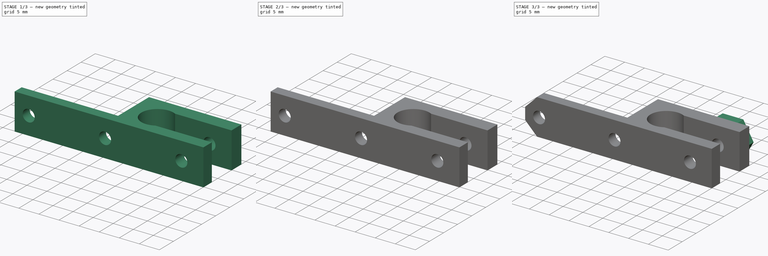
[diagram: build sequence overview — one tinted view per stage of 3, left to right]
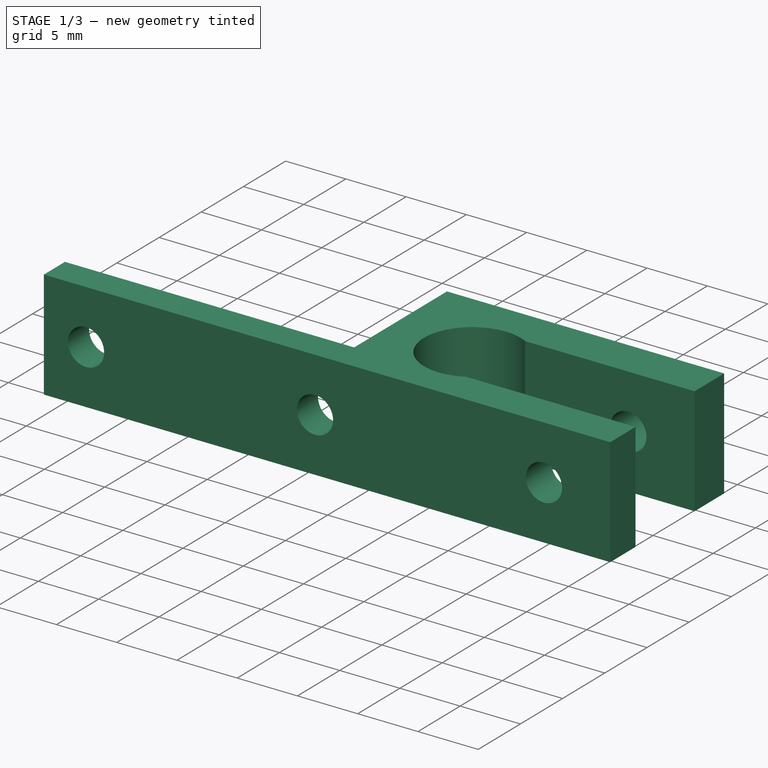
[diagram: stage 1 of 3 — iso view after this stage's code; geometry added in this stage tinted green]
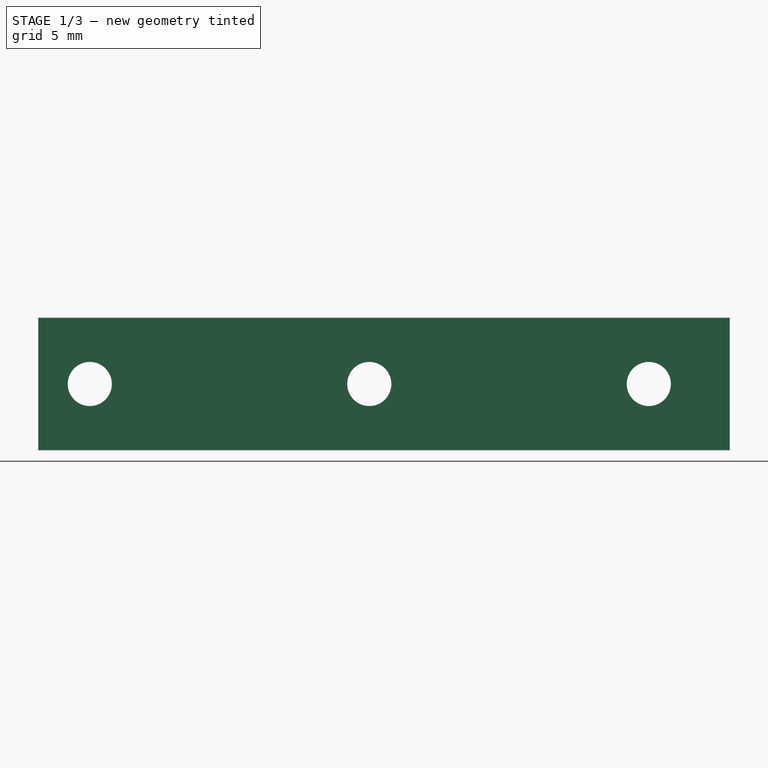
[diagram: stage 1 of 3 — front view after this stage's code; geometry added in this stage tinted green]
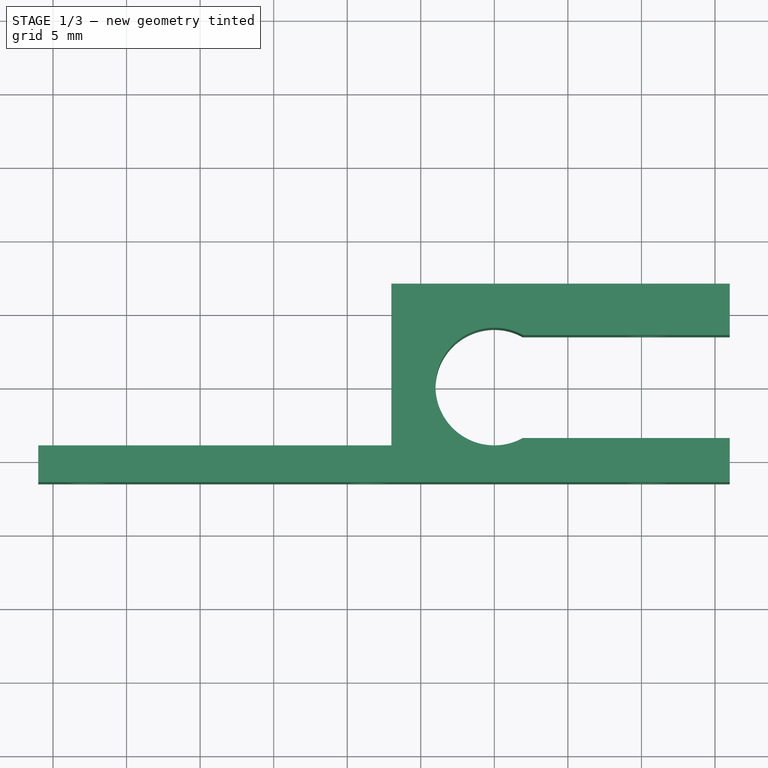
[diagram: stage 1 of 3 — top view after this stage's code; geometry added in this stage tinted green]
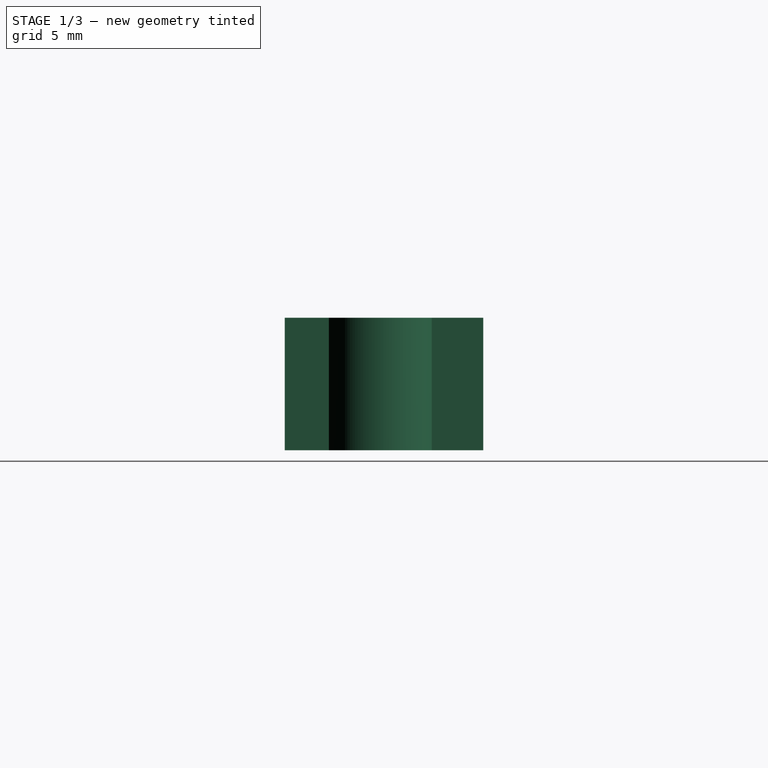
[diagram: stage 1 of 3 — right view after this stage's code; geometry added in this stage tinted green]
FCSTD DOCUMENT  (FreeCAD 0.19R17798 (Git))
Label: endstop_holder
License: All rights reserved
LicenseURL: http://en.wikipedia.org/wiki/All_rights_reserved
objects: Sketcher::SketchObject×5, PartDesign::Pocket×3, PartDesign::Pad×2
note: 15 computed .brp shape members not serialized (recipe doc carries the construction recipe); baked Part::Feature solids carry a one-line shape summary decoded from their .brp

FEATURE [Sketcher::SketchObject] Sketch  label="holderSketch"
  MapMode = 5
  sketch-geometry (21):
    g0: Circle [constr] CenterX=0 CenterY=0 CenterZ=0 NormalX=0 NormalY=0 NormalZ=1 AngleXU=0 Radius=4
    g1: LineSegment [constr] StartX=0 StartY=0 StartZ=0 EndX=0 EndY=-4 EndZ=0
    g2: LineSegment [constr] StartX=0 StartY=0 StartZ=0 EndX=0 EndY=4 EndZ=0
    g3: GeomPoint [constr] X=1.93649 Y=3.5 Z=0
    g4: GeomPoint [constr] X=1.93649 Y=-3.5 Z=0
    g5: LineSegment [constr] StartX=0 StartY=4 StartZ=0 EndX=0 EndY=7 EndZ=0
    g6: LineSegment [constr] StartX=0 StartY=-4 StartZ=0 EndX=0 EndY=-6.5 EndZ=0
    g7: LineSegment [constr] StartX=0 StartY=0 StartZ=0 EndX=-7 EndY=0 EndZ=0
    g8: LineSegment [constr] StartX=-7 StartY=0 StartZ=0 EndX=-31 EndY=0 EndZ=0
    g9: GeomPoint [constr] X=-7 Y=-4 Z=0
    g10: LineSegment StartX=-7 StartY=-4 StartZ=0 EndX=-31 EndY=-4 EndZ=0
    g11: LineSegment StartX=-31 StartY=-4 StartZ=0 EndX=-31 EndY=-6.5 EndZ=0
    g12: LineSegment StartX=-31 StartY=-6.5 StartZ=0 EndX=16 EndY=-6.5 EndZ=0
    g13: LineSegment StartX=16 StartY=-6.5 StartZ=0 EndX=16 EndY=-3.5 EndZ=0
    g14: LineSegment StartX=16 StartY=-3.5 StartZ=0 EndX=1.93649 EndY=-3.5 EndZ=0
    g15: ArcOfCircle CenterX=0 CenterY=0 CenterZ=0 NormalX=0 NormalY=0 NormalZ=1 AngleXU=0 Radius=4 StartAngle=1.06544 EndAngle=5.21775
    g16: LineSegment StartX=1.93649 StartY=3.5 StartZ=0 EndX=16 EndY=3.5 EndZ=0
    g17: LineSegment StartX=0 StartY=7 StartZ=0 EndX=16 EndY=7 EndZ=0
    g18: LineSegment StartX=16 StartY=7 StartZ=0 EndX=16 EndY=3.5 EndZ=0
    g19: LineSegment StartX=-7 StartY=-4 StartZ=0 EndX=-7 EndY=7 EndZ=0
    g20: LineSegment StartX=-7 StartY=7 StartZ=0 EndX=0 EndY=7 EndZ=0
  constraints (56):
    c: Coincident(g0,g-1)
    c: Radius(g0) = 4
    c: Vertical(g1)
    c: Vertical(g2)
    c: Coincident(g2,g-1)
    c: Coincident(g1,g-1)
    c: DistanceY(g2,g2) = 4
    c: Equal(g2,g1)
    c: PointOnObject(g3,g0)
    c: PointOnObject(g4,g0)
    c: DistanceY(g1,g4) = 0.5
    c: DistanceY(g3,g2) = 0.5
    c: Vertical(g5)
    c: Vertical(g6)
    c: Coincident(g6,g1)
    c: Coincident(g5,g2)
    c: DistanceY(g5,g5) = 3
    c: DistanceY(g6,g6) = 2.5
    c: Horizontal(g7)
    c: Coincident(g7,g-1)
    c: DistanceX(g7,g7) = 7
    c: Horizontal(g8)
    c: Coincident(g8,g7)
    c: DistanceX(g8,g8) = 24
    c: DistanceY(g1,g9) = 0
    c: Coincident(g10,g9)
    c: Horizontal(g10)
    c: DistanceX(g8,g10) = 0
    c: Coincident(g10,g11)
    c: Vertical(g11)
    c: Coincident(g11,g12)
    c: Horizontal(g12)
    c: DistanceX(g12,g12) = 47
    c: DistanceY(g6,g12) = 0
    c: Coincident(g12,g13)
    c: Vertical(g13)
    c: Coincident(g13,g14)
    c: Coincident(g14,g4)
    c: Horizontal(g14)
    c: Coincident(g15,g-1)
    c: Coincident(g15,g4)
    c: Coincident(g15,g3)
    c: Coincident(g16,g3)
    c: Horizontal(g16)
    c: DistanceX(g13,g16) = 0
    c: Coincident(g5,g17)
    c: Horizontal(g17)
    c: Coincident(g17,g18)
    c: Coincident(g18,g16)
    c: Vertical(g18)
    c: DistanceX(g7,g9) = 0
    c: Coincident(g19,g9)
    c: Vertical(g19)
    c: DistanceY(g19,g5) = 0
    c: Coincident(g20,g19)
    c: Coincident(g20,g5)
FEATURE [PartDesign::Pad] Pad  label="holderPad"
  Length = 9
  Length2 = 100
  Profile = -> Sketch
  Type = 0
FEATURE [Sketcher::SketchObject] Sketch001  label="holesSketch"
  MapMode = 5
  Placement = pos=(0,-6.5,0) rot=(1,0,0;1.5708rad)
  Support = -> [Pad]
  sketch-geometry (6):
    g0: GeomPoint [constr] X=10.5 Y=4.5 Z=0
    g1: GeomPoint [constr] X=-27.5 Y=4.5 Z=0
    g2: GeomPoint [constr] X=-8.5 Y=4.5 Z=0
    g3: Circle CenterX=-27.5 CenterY=4.5 CenterZ=0 NormalX=0 NormalY=0 NormalZ=1 AngleXU=0 Radius=1.5
    g4: Circle CenterX=-8.5 CenterY=4.5 CenterZ=0 NormalX=0 NormalY=0 NormalZ=1 AngleXU=0 Radius=1.5
    g5: Circle CenterX=10.5 CenterY=4.5 CenterZ=0 NormalX=0 NormalY=0 NormalZ=1 AngleXU=0 Radius=1.5
  constraints (12):
    c: DistanceY(g-1,g0) = 4.5
    c: DistanceX(g-1,g0) = 10.5
    c: DistanceY(g-1,g1) = 4.5
    c: DistanceX(g1,g-1) = 27.5
    c: DistanceY(g-1,g2) = 4.5
    c: DistanceX(g1,g2) = 19
    c: Equal(g5,g4)
    c: Equal(g4,g3)
    c: Coincident(g1,g3)
    c: Coincident(g2,g4)
    c: Coincident(g0,g5)
    c: Radius(g3) = 1.5
FEATURE [PartDesign::Pocket] Pocket  label="holesPocket"
  Length = 5
  Length2 = 100
  Profile = -> Sketch001
  Type = 1
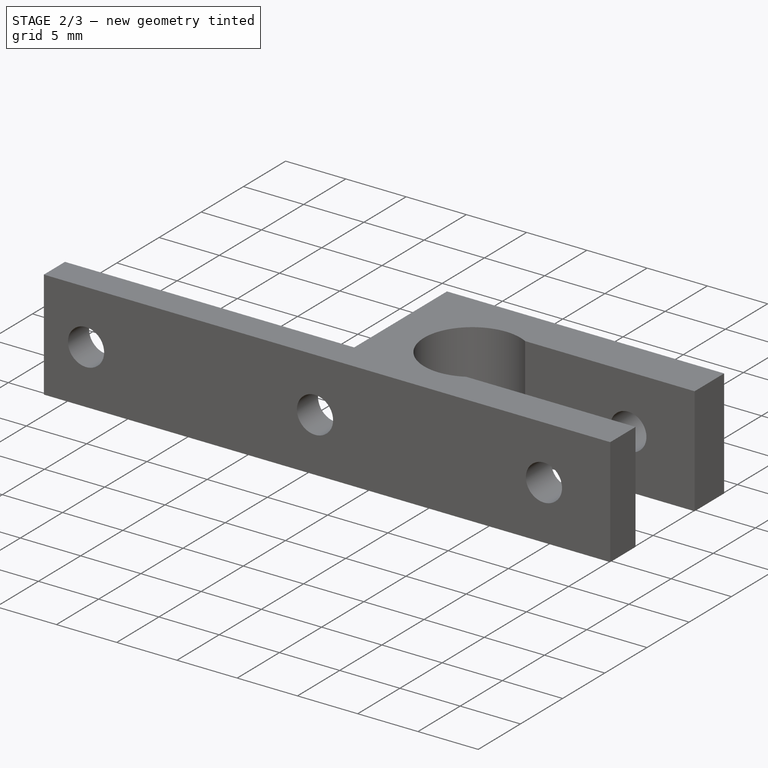
[diagram: stage 2 of 3 — iso view after this stage's code; geometry added in this stage tinted green]
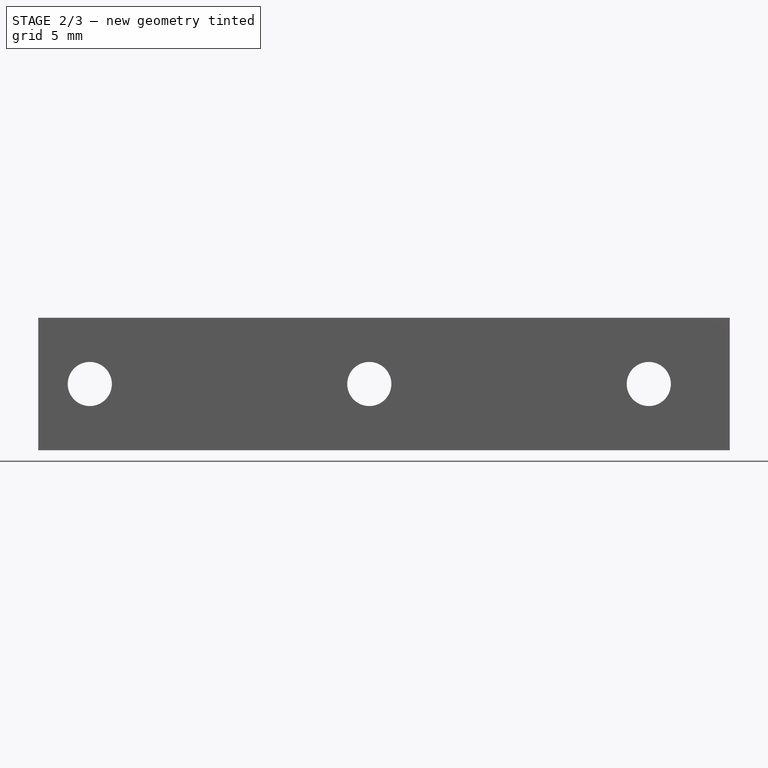
[diagram: stage 2 of 3 — front view after this stage's code; geometry added in this stage tinted green]
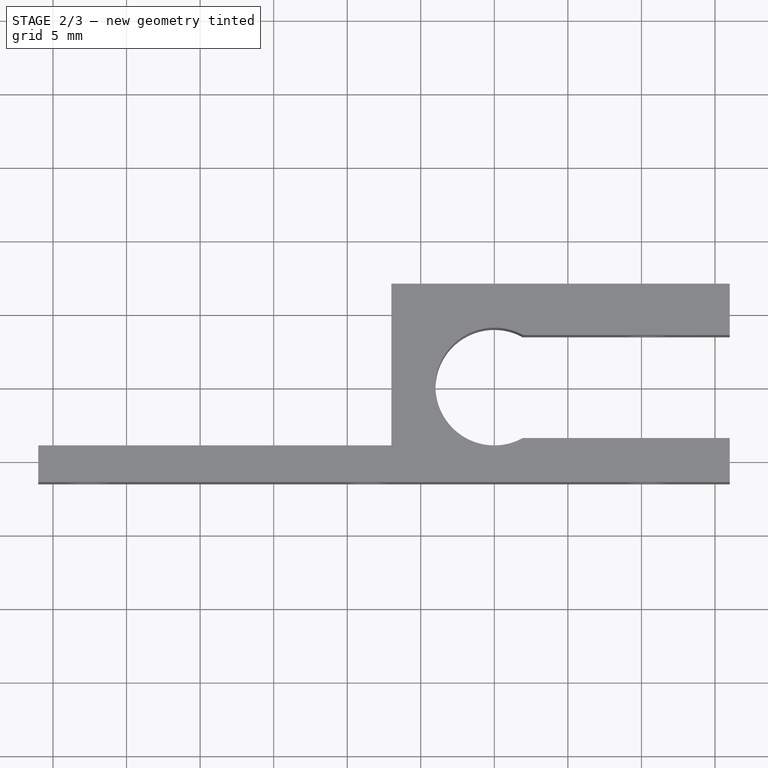
[diagram: stage 2 of 3 — top view after this stage's code; geometry added in this stage tinted green]
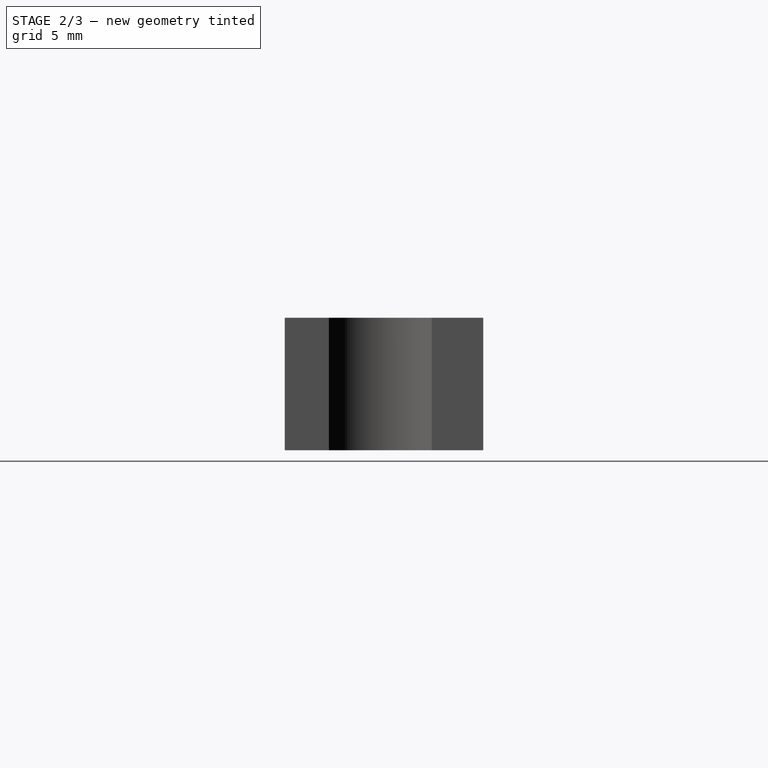
[diagram: stage 2 of 3 — right view after this stage's code; geometry added in this stage tinted green]
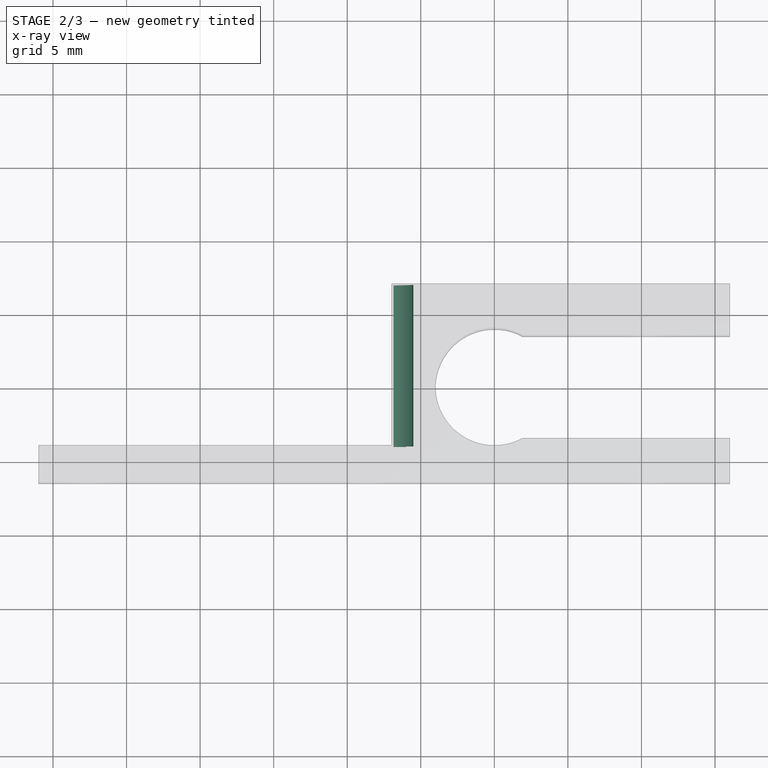
[diagram: stage 2 of 3 — x-ray composite at the top view; earlier geometry ghosted, this stage's added geometry solid]
FEATURE [Sketcher::SketchObject] Sketch002  label="boltPassageSketch"
  MapMode = 5
  Placement = pos=(0,7,0) rot=(0,0.707107,0.707107;3.14159rad)
  Support = -> [Pocket]
  sketch-geometry (3):
    g0: GeomPoint [constr] X=27.5 Y=4.5 Z=0
    g1: GeomPoint [constr] X=8.5 Y=4.5 Z=0
    g2: Circle CenterX=8.5 CenterY=4.5 CenterZ=0 NormalX=0 NormalY=0 NormalZ=1 AngleXU=0 Radius=3
  constraints (6):
    c: DistanceX(g-1,g0) = 27.5
    c: DistanceY(g-1,g0) = 4.5
    c: DistanceX(g1,g0) = 19
    c: DistanceY(g-1,g1) = 4.5
    c: Coincident(g2,g1)
    c: Radius(g2) = 3
FEATURE [PartDesign::Pocket] Pocket001  label="boltPassagePocket"
  Length = 11
  Length2 = 100
  Profile = -> Sketch002
  Type = 0
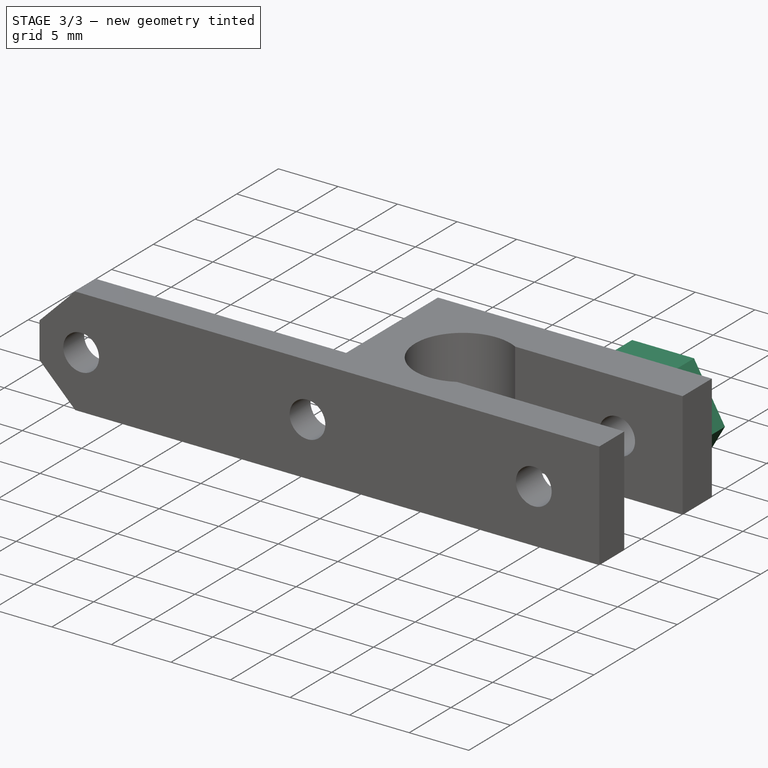
[diagram: stage 3 of 3 — iso view after this stage's code; geometry added in this stage tinted green]
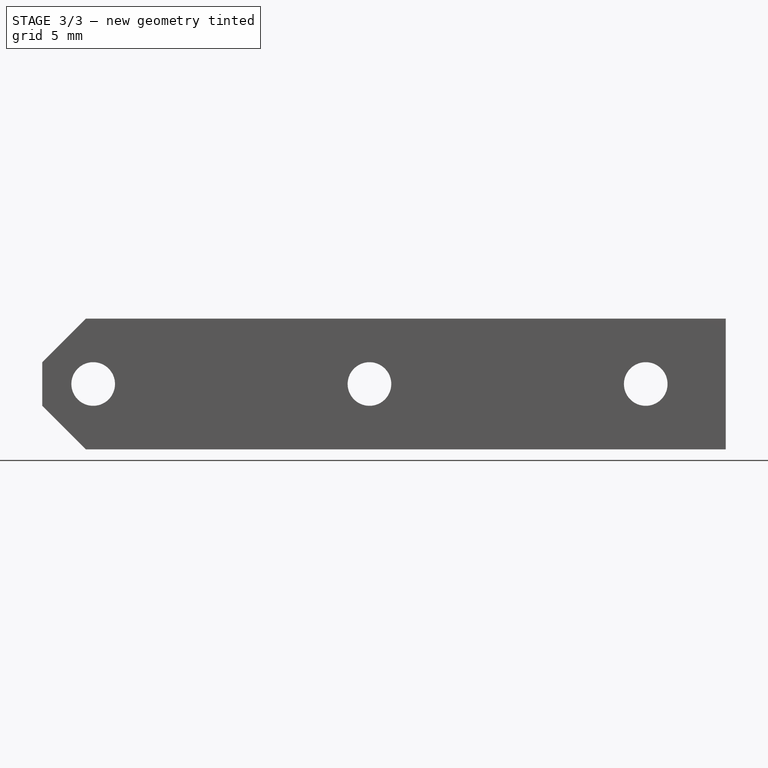
[diagram: stage 3 of 3 — front view after this stage's code; geometry added in this stage tinted green]
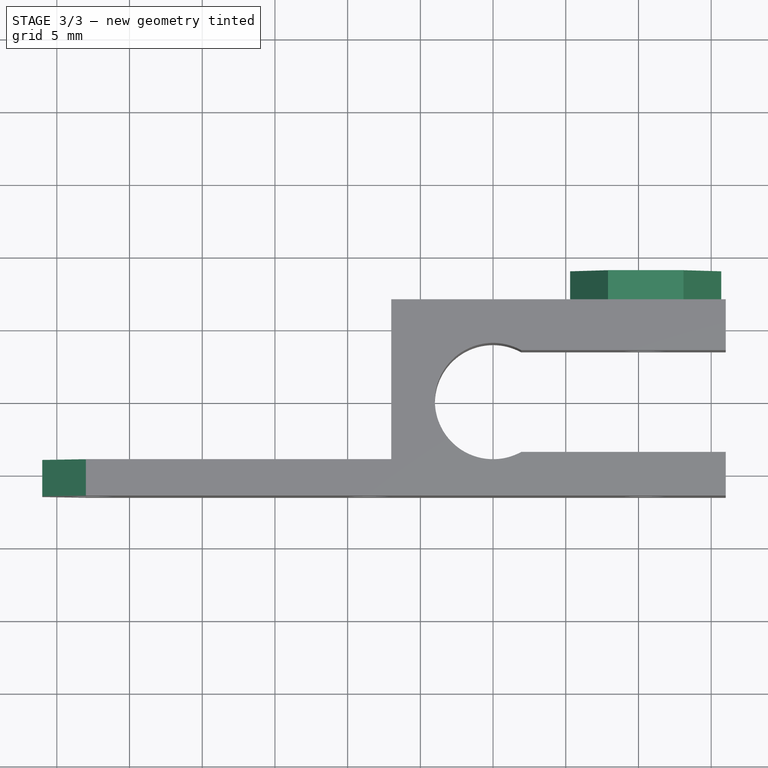
[diagram: stage 3 of 3 — top view after this stage's code; geometry added in this stage tinted green]
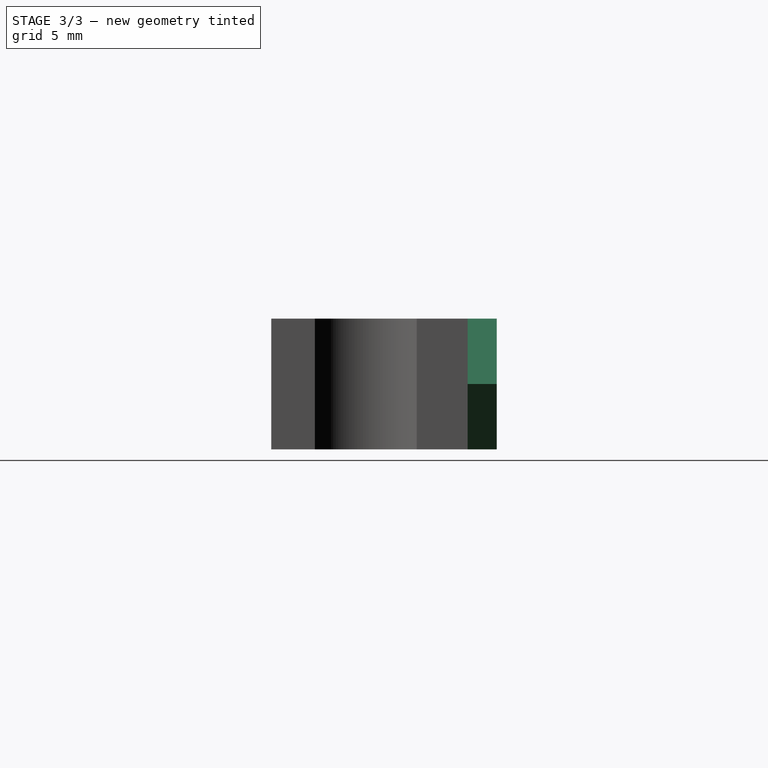
[diagram: stage 3 of 3 — right view after this stage's code; geometry added in this stage tinted green]
FEATURE [Sketcher::SketchObject] Sketch003  label="nutCatcherSketch"
  MapMode = 5
  Placement = pos=(0,7,0) rot=(0,0.707107,0.707107;3.14159rad)
  Support = -> [Pocket001]
  sketch-geometry (15):
    g0: GeomPoint [constr] X=-10.5 Y=4.5 Z=0
    g1: LineSegment StartX=-9 StartY=1.90192 StartZ=0 EndX=-7.5 EndY=4.5 EndZ=0
    g2: LineSegment StartX=-7.5 StartY=4.5 StartZ=0 EndX=-9 EndY=7.09808 EndZ=0
    g3: LineSegment StartX=-9 StartY=7.09808 StartZ=0 EndX=-12 EndY=7.09808 EndZ=0
    g4: LineSegment StartX=-12 StartY=7.09808 StartZ=0 EndX=-13.5 EndY=4.5 EndZ=0
    g5: LineSegment StartX=-13.5 StartY=4.5 StartZ=0 EndX=-12 EndY=1.90192 EndZ=0
    g6: LineSegment StartX=-12 StartY=1.90192 StartZ=0 EndX=-9 EndY=1.90192 EndZ=0
    g7: Circle [constr] CenterX=-10.5 CenterY=4.5 CenterZ=0 NormalX=0 NormalY=0 NormalZ=1 AngleXU=0 Radius=3
    g8: LineSegment StartX=-13.0981 StartY=9 StartZ=0 EndX=-15.6962 EndY=4.5 EndZ=0
    g9: LineSegment StartX=-15.6962 StartY=4.5 StartZ=0 EndX=-13.0981 EndY=0 EndZ=0
    g10: LineSegment StartX=-13.0981 StartY=0 StartZ=0 EndX=-7.90192 EndY=0 EndZ=0
    g11: LineSegment StartX=-7.90192 StartY=0 StartZ=0 EndX=-5.30385 EndY=4.5 EndZ=0
    g12: LineSegment StartX=-5.30385 StartY=4.5 StartZ=0 EndX=-7.90192 EndY=9 EndZ=0
    g13: LineSegment StartX=-7.90192 StartY=9 StartZ=0 EndX=-13.0981 EndY=9 EndZ=0
    g14: Circle [constr] CenterX=-10.5 CenterY=4.5 CenterZ=0 NormalX=0 NormalY=0 NormalZ=1 AngleXU=0 Radius=5.19615
  constraints (34):
    c: DistanceY(g-1,g0) = 4.5
    c: DistanceX(g0,g-1) = 10.5
    c: Coincident(g1,g2)
    c: Coincident(g2,g3)
    c: Coincident(g3,g4)
    c: Coincident(g4,g5)
    c: Coincident(g5,g6)
    c: Coincident(g6,g1)
    c: Equal(g1, g2-g6) x5
    c: PointOnObject(g1,g7)
    c: PointOnObject(g2,g7)
    c: PointOnObject(g3,g7)
    c: PointOnObject(g4,g7)
    c: PointOnObject(g5,g7)
    c: PointOnObject(g6,g7)
    c: Coincident(g7,g0)
    c: Horizontal(g6)
    c: Radius(g7) = 3
    c: Coincident(g8,g9)
    c: Coincident(g9,g10)
    c: Coincident(g10,g11)
    c: Coincident(g11,g12)
    c: Coincident(g12,g13)
    c: Coincident(g13,g8)
    c: Equal(g8, g9-g13) x5
    c: PointOnObject(g8,g14)
    c: PointOnObject(g9,g14)
    c: PointOnObject(g10,g14)
    c: PointOnObject(g11,g14)
    c: PointOnObject(g12,g14)
    c: PointOnObject(g13,g14)
    c: Coincident(g14,g0)
    c: Horizontal(g13)
    c: DistanceY(g9,g0) = 4.5
FEATURE [PartDesign::Pad] Pad001  label="nutCatcherPad"
  Length = 2
  Length2 = 100
  Profile = -> Sketch003
  Type = 0
FEATURE [Sketcher::SketchObject] Sketch004  label="cutCornersSketch"
  ExternalGeometry = -> [Pad001]
  MapMode = 5
  Placement = pos=(0,-4,0) rot=(0,0.707107,0.707107;3.14159rad)
  Support = -> [Pad001]
  sketch-geometry (10):
    g0: GeomPoint [constr] X=28 Y=9 Z=0
    g1: GeomPoint [constr] X=31 Y=6 Z=0
    g2: GeomPoint [constr] X=28 Y=0 Z=0
    g3: GeomPoint [constr] X=31 Y=3 Z=0
    g4: LineSegment StartX=31 StartY=6 StartZ=0 EndX=28 EndY=9 EndZ=0
    g5: LineSegment StartX=28 StartY=9 StartZ=0 EndX=31 EndY=9 EndZ=0
    g6: LineSegment StartX=31 StartY=9 StartZ=0 EndX=31 EndY=6 EndZ=0
    g7: LineSegment StartX=28 StartY=0 StartZ=0 EndX=31 EndY=0 EndZ=0
    g8: LineSegment StartX=31 StartY=0 StartZ=0 EndX=31 EndY=3 EndZ=0
    g9: LineSegment StartX=31 StartY=3 StartZ=0 EndX=28 EndY=0 EndZ=0
  constraints (20):
    c: DistanceY(g-5,g3) = 3
    c: PointOnObject(g3,g-4)
    c: DistanceY(g1,g-4) = 3
    c: PointOnObject(g1,g-4)
    c: PointOnObject(g0,g-3)
    c: PointOnObject(g2,g-5)
    c: DistanceX(g2,g-5) = 3
    c: DistanceX(g0,g-4) = 3
    c: Coincident(g4,g1)
    c: Coincident(g4,g0)
    c: Coincident(g4,g5)
    c: Coincident(g5,g-4)
    c: Coincident(g5,g6)
    c: Coincident(g6,g4)
    c: Coincident(g7,g2)
    c: Coincident(g7,g-5)
    c: Coincident(g7,g8)
    c: Coincident(g8,g3)
    c: Coincident(g8,g9)
    c: Coincident(g9,g7)
FEATURE [PartDesign::Pocket] Pocket002  label="cutCornersPocket"
  Length = 5
  Length2 = 100
  Profile = -> Sketch004
  Type = 1
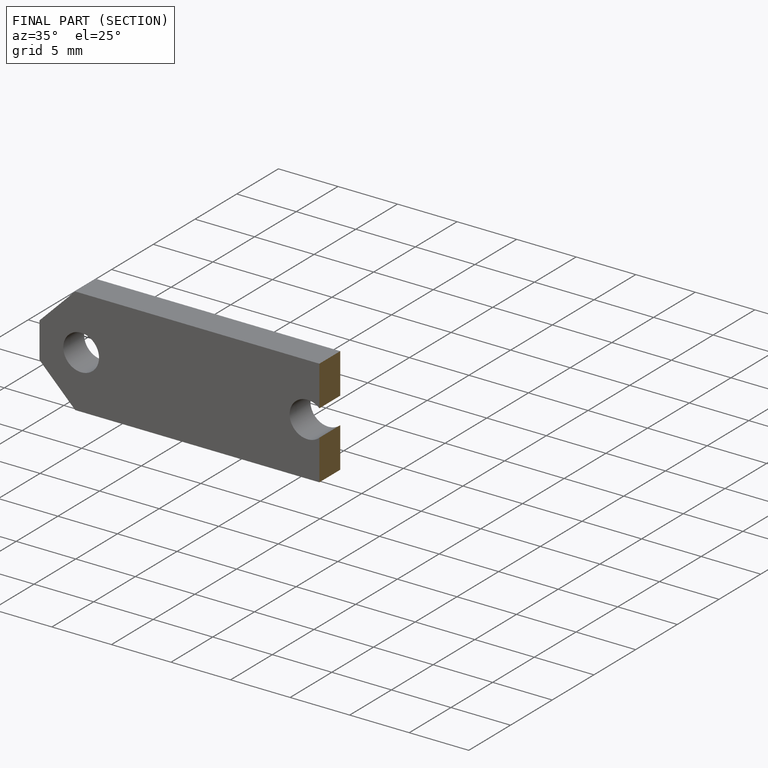
[diagram: finished part — half-section view (interior)]
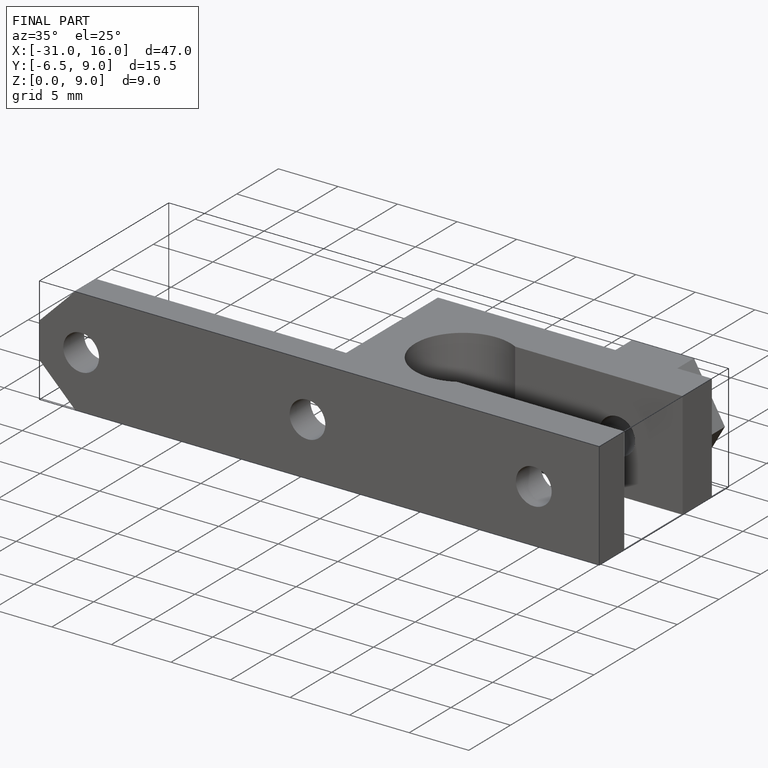
[diagram: finished part — iso view with bounding-box wireframe]
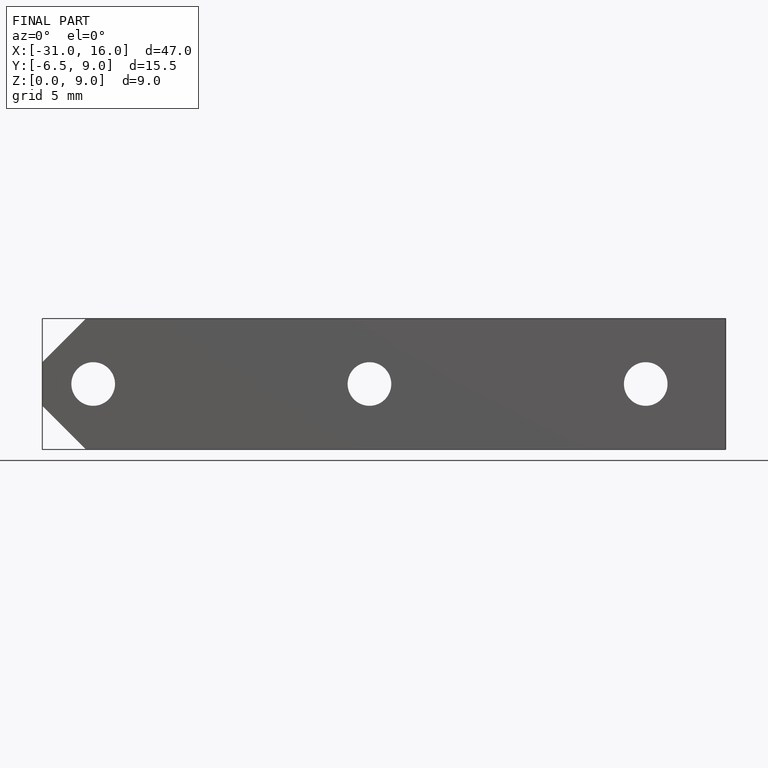
[diagram: finished part — front view with bounding-box wireframe]
